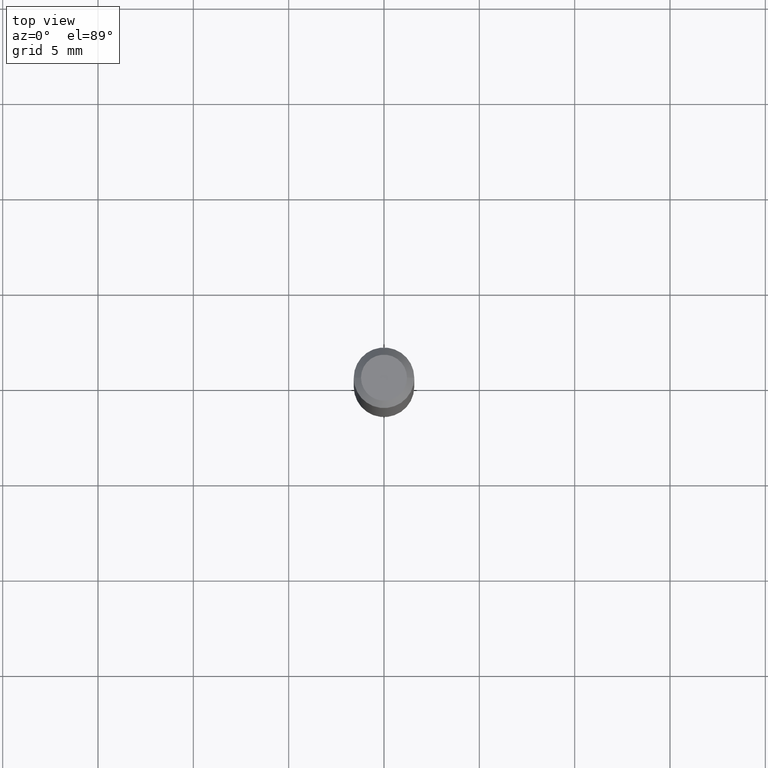
[diagram: clean part render]
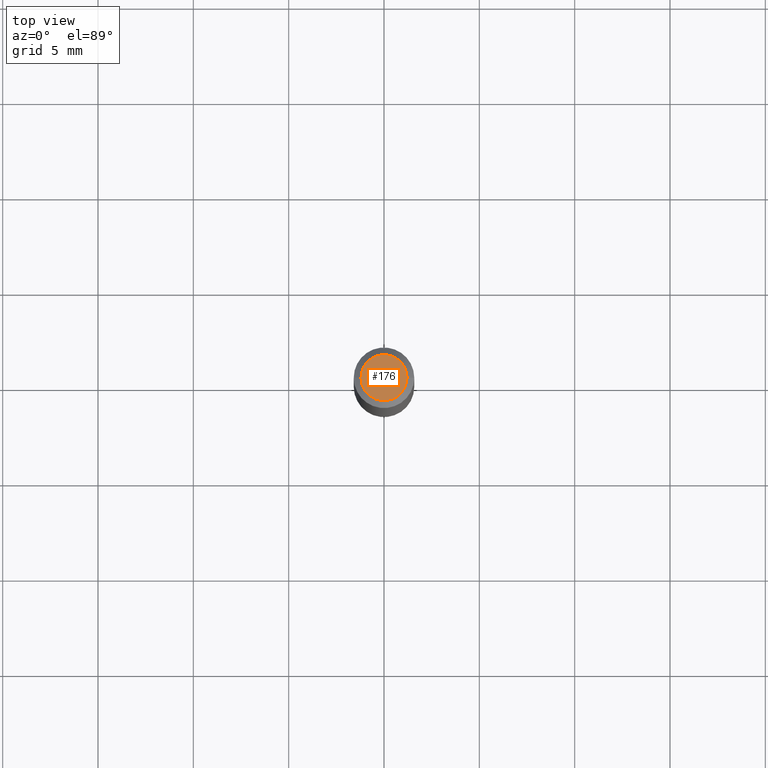
[diagram: same view with one face highlighted and labeled with its STEP entity id]
A machine part, top view. The second image highlights one B-rep face of the part: STEP entity #176.
In plain terms, the highlighted planar face has unit normal (0, -0, -1).
Its self-contained STEP definition (entity closure, byte-faithful):
#6 = AXIS2_PLACEMENT_3D ( 'NONE', #355, #25, #28 ) ;
#25 = DIRECTION ( 'NONE',  ( -2.445468806185136597E-29, 3.491481338843145583E-15, 1.000000000000000000 ) ) ;
#28 = DIRECTION ( 'NONE',  ( 1.000000000000000000, -6.982962677686267499E-15, 4.852736867747366768E-29 ) ) ;
#43 = DIRECTION ( 'NONE',  ( -2.445468806185136597E-29, 3.491481338843145583E-15, 1.000000000000000000 ) ) ;
#49 = VERTEX_POINT ( 'NONE', #182 ) ;
#110 = PLANE ( 'NONE',  #417 ) ;
#124 = CIRCLE ( 'NONE', #380, 0.04749999999999999362 ) ;
#176 = ADVANCED_FACE ( 'NONE', ( #427 ), #110, .F. ) ;
#182 = CARTESIAN_POINT ( 'NONE',  ( 0.04749999999999999362, -4.035134999187586019E-16, -4.564927558880262878E-16 ) ) ;
#196 = DIRECTION ( 'NONE',  ( 1.000000000000000000, -6.982962677686267499E-15, 4.852736867747366768E-29 ) ) ;
#210 = VERTEX_POINT ( 'NONE', #431 ) ;
#225 = ORIENTED_EDGE ( 'NONE', *, *, #386, .T. ) ;
#227 = DIRECTION ( 'NONE',  ( 2.438088387897960049E-29, -3.491481338843145188E-15, -1.000000000000000000 ) ) ;
#228 = EDGE_CURVE ( 'NONE', #49, #210, #124, .T. ) ;
#238 = ORIENTED_EDGE ( 'NONE', *, *, #228, .T. ) ;
#254 = CARTESIAN_POINT ( 'NONE',  ( 3.316907271900976096E-16, 0.04749999999999999362, -3.940917415390638222E-16 ) ) ;
#355 = CARTESIAN_POINT ( 'NONE',  ( 1.116338794773660675E-44, -1.593835938500131952E-30, -4.564927558880287530E-16 ) ) ;
#367 = CARTESIAN_POINT ( 'NONE',  ( 1.116338794773660675E-44, -1.593835938500131952E-30, -4.564927558880287530E-16 ) ) ;
#380 = AXIS2_PLACEMENT_3D ( 'NONE', #367, #43, #196 ) ;
#386 = EDGE_CURVE ( 'NONE', #210, #49, #465, .T. ) ;
#393 = DIRECTION ( 'NONE',  ( -1.000000000000000000, 6.982962677686265922E-15, -4.876176775795935793E-29 ) ) ;
#417 = AXIS2_PLACEMENT_3D ( 'NONE', #254, #227, #393 ) ;
#427 = FACE_OUTER_BOUND ( 'NONE', #434, .T. ) ;
#431 = CARTESIAN_POINT ( 'NONE',  ( -0.04749999999999999362, 3.578768372314203110E-16, -4.564927558880312182E-16 ) ) ;
#434 = EDGE_LOOP ( 'NONE', ( #225, #238 ) ) ;
#465 = CIRCLE ( 'NONE', #6, 0.04749999999999999362 ) ;